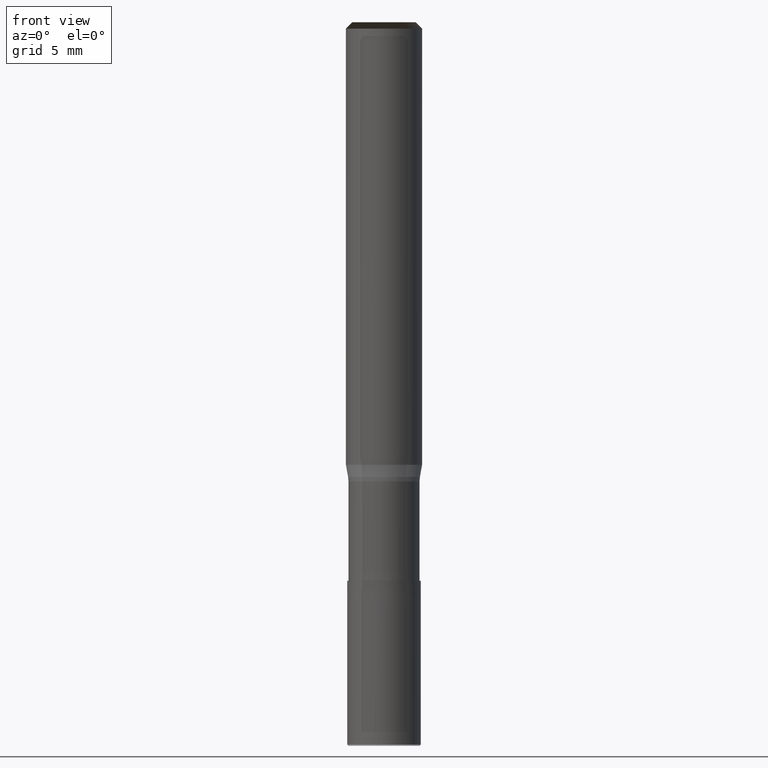
[diagram: clean part render]
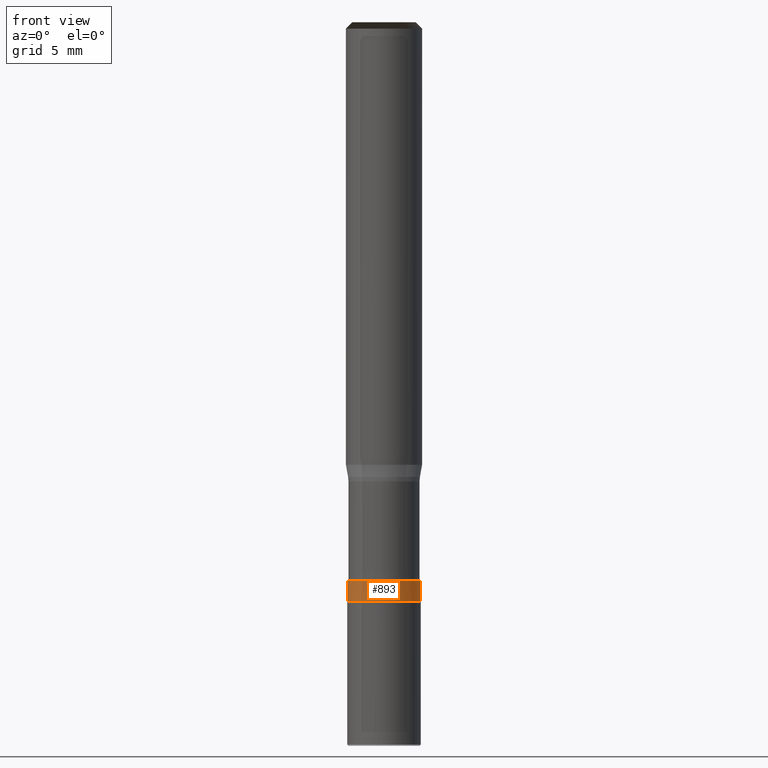
[diagram: same view with one face highlighted and labeled with its STEP entity id]
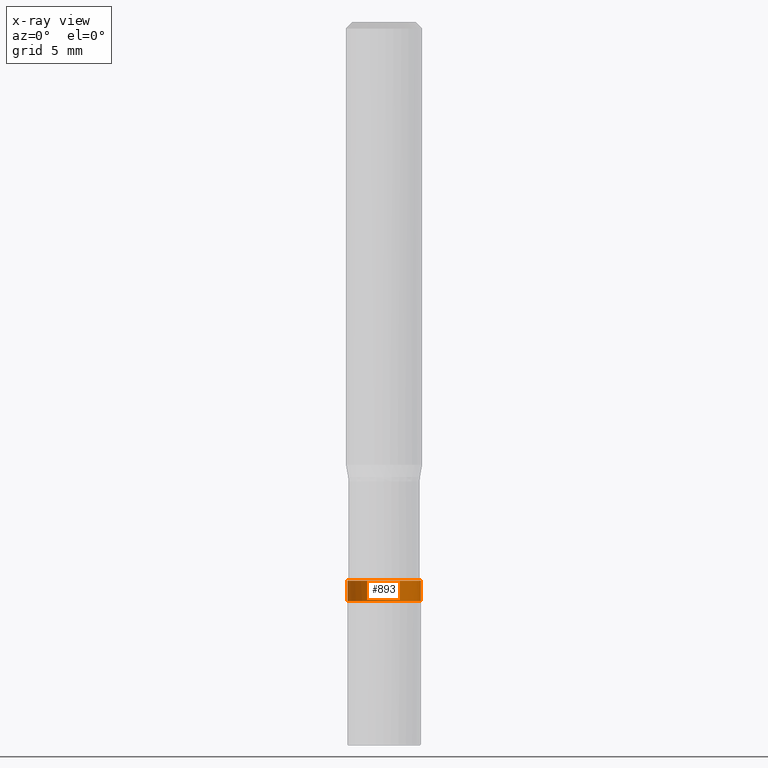
[diagram: x-ray of the same camera — body ghosted, the highlighted face saturated]
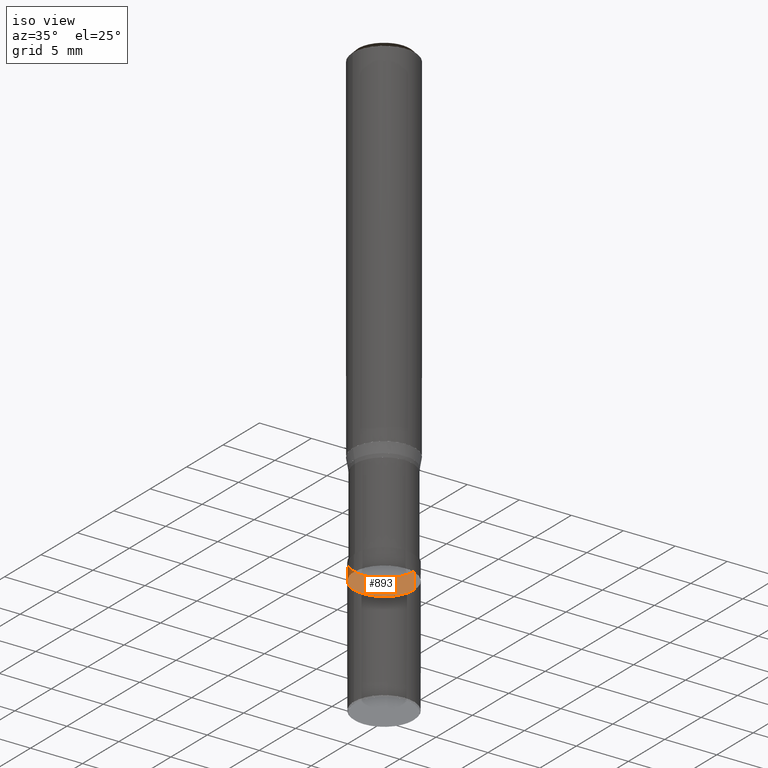
[diagram: same view with one face highlighted and labeled with its STEP entity id]
A machine part, front view. The second image highlights one B-rep face of the part: STEP entity #893.
The next image is the same camera in x-ray: the body ghosted, the highlighted face saturated — about 0% of this face is hidden behind the body in this view.
A second angle (iso view) of the same face is appended — the face is thin or edge-on in the first view.
In plain terms, the highlighted face is a freeform B-spline surface patch.
Its self-contained STEP definition (entity closure, byte-faithful):
#453=CARTESIAN_POINT('',(2.9,0.0,-10.759256363924));
#457=CARTESIAN_POINT('',(-2.9,0.0,-10.759256363924));
#465=CARTESIAN_POINT('',(-2.9,-2.9,-10.759256363924));
#466=CARTESIAN_POINT('',(0.0,-2.9,-10.759256363924));
#467=CARTESIAN_POINT('',(2.9,-2.9,-10.759256363924));
#468=CARTESIAN_POINT('',(2.9,0.0,-9.134256363924));
#472=CARTESIAN_POINT('',(-2.9,0.0,-9.134256363924));
#509=CARTESIAN_POINT('',(-2.9,-2.9,-9.134256363924));
#510=CARTESIAN_POINT('',(0.0,-2.9,-9.134256363924));
#511=CARTESIAN_POINT('',(2.9,-2.9,-9.134256363924));
#874=(
BOUNDED_SURFACE()
B_SPLINE_SURFACE(1,2,(
(#457,#465,#466,#467,#453),
(#472,#509,#510,#511,#468)
), .UNSPECIFIED.,.F.,.F.,.F.)
B_SPLINE_SURFACE_WITH_KNOTS((2,2),(3,2,3),(
0.0,1.0),(
0.0,0.5,1.0), .UNSPECIFIED.)
GEOMETRIC_REPRESENTATION_ITEM()
RATIONAL_B_SPLINE_SURFACE(((1.0,0.707106781187,1.0,0.707106781187,1.0),
(1.0,0.707106781187,1.0,0.707106781187,1.0)
))
REPRESENTATION_ITEM('')
SURFACE()
);
#875=(
BOUNDED_CURVE()
B_SPLINE_CURVE(2,(#453,#467,#466,#465,#457),.UNSPECIFIED.,.F.,.F.)
B_SPLINE_CURVE_WITH_KNOTS((3,2,3),
(0.0,0.5,1.0),.UNSPECIFIED.)
CURVE()
GEOMETRIC_REPRESENTATION_ITEM()
RATIONAL_B_SPLINE_CURVE((1.0,0.707106781187,1.0,0.707106781187,1.0))
REPRESENTATION_ITEM('')
);
#876=(
BOUNDED_CURVE()
B_SPLINE_CURVE(1,(#457,#472),.UNSPECIFIED.,.F.,.F.)
B_SPLINE_CURVE_WITH_KNOTS((2,2),
(0.0,1.0),.UNSPECIFIED.)
CURVE()
GEOMETRIC_REPRESENTATION_ITEM()
RATIONAL_B_SPLINE_CURVE((1.0,1.0))
REPRESENTATION_ITEM('')
);
#877=(
BOUNDED_CURVE()
B_SPLINE_CURVE(2,(#472,#509,#510,#511,#468),.UNSPECIFIED.,.F.,.F.)
B_SPLINE_CURVE_WITH_KNOTS((3,2,3),
(0.0,0.5,1.0),.UNSPECIFIED.)
CURVE()
GEOMETRIC_REPRESENTATION_ITEM()
RATIONAL_B_SPLINE_CURVE((1.0,0.707106781187,1.0,0.707106781187,1.0))
REPRESENTATION_ITEM('')
);
#878=(
BOUNDED_CURVE()
B_SPLINE_CURVE(1,(#468,#453),.UNSPECIFIED.,.F.,.F.)
B_SPLINE_CURVE_WITH_KNOTS((2,2),
(0.0,1.0),.UNSPECIFIED.)
CURVE()
GEOMETRIC_REPRESENTATION_ITEM()
RATIONAL_B_SPLINE_CURVE((1.0,1.0))
REPRESENTATION_ITEM('')
);
#879=VERTEX_POINT('',#453);
#880=VERTEX_POINT('',#457);
#881=VERTEX_POINT('',#468);
#882=VERTEX_POINT('',#472);
#883=EDGE_CURVE('',#879,#880,#875,.T.);
#884=EDGE_CURVE('',#880,#882,#876,.T.);
#885=EDGE_CURVE('',#882,#881,#877,.T.);
#886=EDGE_CURVE('',#881,#879,#878,.T.);
#887=ORIENTED_EDGE('',*,*,#883,.T.);
#888=ORIENTED_EDGE('',*,*,#884,.T.);
#889=ORIENTED_EDGE('',*,*,#885,.T.);
#890=ORIENTED_EDGE('',*,*,#886,.T.);
#891=EDGE_LOOP('',(#887,#888,#889,#890));
#892=FACE_OUTER_BOUND('',#891,.T.);
#893=ADVANCED_FACE('',(#892),#874,.T.);